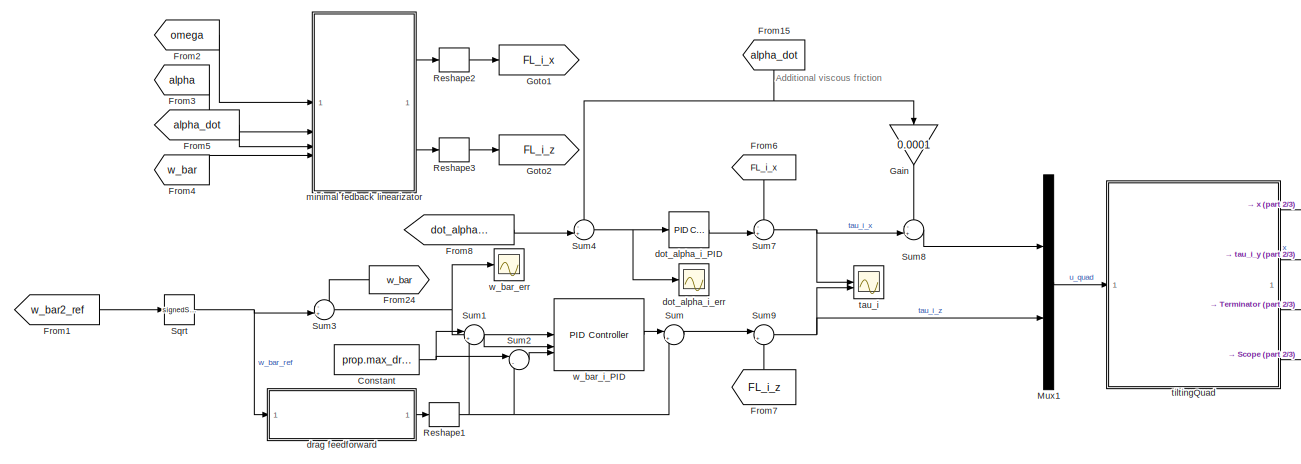
[diagram: root canvas - part 1/3, full width, top band]
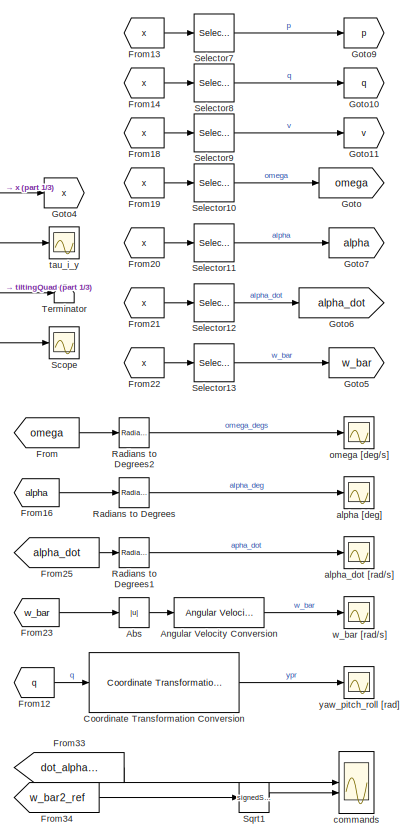
[diagram: root canvas - part 2/3, right side, full height]
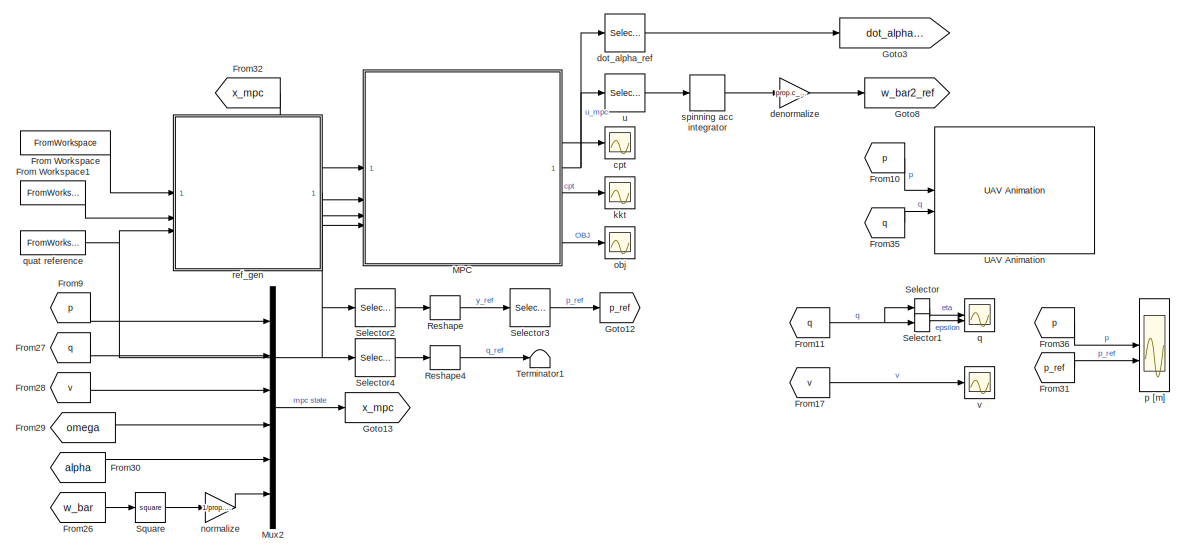
[diagram: root canvas - part 3/3, bottom center region]
MODEL slx_fb69500b9899
KIND model
CONFIG AbsTol = auto
CONFIG EnableMultiTasking = off
CONFIG FixedStep = Ts
CONFIG InitFcn = run initNMPChighFidelityTiltingQuadrotor.m
CONFIG MaxStep = auto
CONFIG MinStep = auto
CONFIG RelTol = 1e-3
CONFIG SampleTimeConstraint = Unconstrained
CONFIG SolverName = ode4
CONFIG StartTime = 0.0
CONFIG StopTime = 15
BLOCK [Abs] Abs
  SaturateOnIntegerOverflow = off
BLOCK [Reference] Angular Velocity Conversion  REF=aerolibconvert2/Angular Velocity
Conversion
  Commented = through
  SourceBlock = aerolibconvert2/Angular Velocity\nConversion
  SourceType = Angular Velocity Conversion
BLOCK [Constant] Constant
  Value = prop.max_drag
BLOCK [Reference] Coordinate Transformation Conversion  REF=robotcorelib/Coordinate Transformation Conversion
  LibrarySourceBlock = robotutilslib/Coordinate Transformation Conversion
  SourceBlock = robotcorelib/Coordinate Transformation Conversion
  SourceType = robotics.slcore.internal.block.CoordinateTransformationConversion
BLOCK [From] From
  GotoTag = omega
BLOCK [FromWorkspace] From Workspace
  Interpolate = off
  OutputAfterFinalValue = Holding final value
  SampleTime = Ts_st
  VariableName = ref
BLOCK [FromWorkspace] From Workspace1
  Interpolate = off
  OutputAfterFinalValue = Holding final value
  SampleTime = Ts_st
  VariableName = refN
BLOCK [From] From1
  GotoTag = w_bar2_ref
BLOCK [From] From10
  GotoTag = p
BLOCK [From] From11
  GotoTag = q
BLOCK [From] From12
  GotoTag = q
BLOCK [From] From13
  GotoTag = x
BLOCK [From] From14
  GotoTag = x
BLOCK [From] From15
  GotoTag = alpha_dot
  NameLocation = left
BLOCK [From] From16
  GotoTag = alpha
BLOCK [From] From17
  GotoTag = v
BLOCK [From] From18
  GotoTag = x
BLOCK [From] From19
  GotoTag = x
BLOCK [From] From2
  GotoTag = omega
BLOCK [From] From20
  GotoTag = x
BLOCK [From] From21
  GotoTag = x
BLOCK [From] From22
  GotoTag = x
BLOCK [From] From23
  GotoTag = w_bar
BLOCK [From] From24
  GotoTag = w_bar
BLOCK [From] From25
  GotoTag = alpha_dot
BLOCK [From] From26
  GotoTag = w_bar
BLOCK [From] From27
  GotoTag = q
BLOCK [From] From28
  GotoTag = v
BLOCK [From] From29
  GotoTag = omega
BLOCK [From] From3
  GotoTag = alpha
BLOCK [From] From30
  GotoTag = alpha
BLOCK [From] From31
  GotoTag = p_ref
BLOCK [From] From32
  GotoTag = x_mpc
BLOCK [From] From33
  GotoTag = dot_alpha_ref
BLOCK [From] From34
  GotoTag = w_bar2_ref
BLOCK [From] From35
  GotoTag = q
BLOCK [From] From36
  GotoTag = p
BLOCK [From] From4
  GotoTag = w_bar
BLOCK [From] From5
  GotoTag = alpha_dot
BLOCK [From] From6
  GotoTag = FL_i_x
  NameLocation = right
BLOCK [From] From7
  GotoTag = FL_i_z
  NameLocation = left
BLOCK [From] From8
  GotoTag = dot_alpha_ref
BLOCK [From] From9
  GotoTag = p
BLOCK [Gain] Gain
  Gain = 0.0001
  NameLocation = left
BLOCK [Goto] Goto
  GotoTag = omega
BLOCK [Goto] Goto1
  GotoTag = FL_i_x
BLOCK [Goto] Goto10
  GotoTag = q
BLOCK [Goto] Goto11
  GotoTag = v
BLOCK [Goto] Goto12
  GotoTag = p_ref
BLOCK [Goto] Goto13
  GotoTag = x_mpc
BLOCK [Goto] Goto2
  GotoTag = FL_i_z
BLOCK [Goto] Goto3
  GotoTag = dot_alpha_ref
BLOCK [Goto] Goto4
  GotoTag = x
BLOCK [Goto] Goto5
  GotoTag = w_bar
BLOCK [Goto] Goto6
  GotoTag = alpha_dot
BLOCK [Goto] Goto7
  GotoTag = alpha
BLOCK [Goto] Goto8
  GotoTag = w_bar2_ref
BLOCK [Goto] Goto9
  GotoTag = p
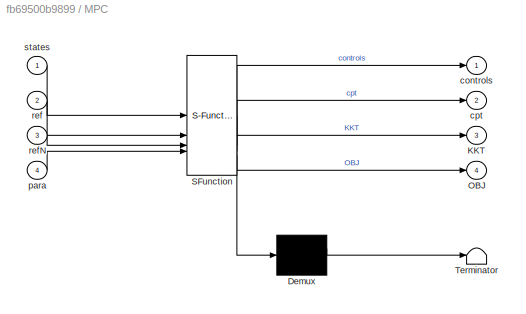
BLOCK [SubSystem] MPC
  ErrorFcn = Stateflow.Translate.translate
  PermitHierarchicalResolution = ExplicitOnly
  SFBlockType = MATLAB Function
  TreatAsAtomicUnit = on
BLOCK [Demux] MPC/ Demux 
  Outputs = 1
BLOCK [S-Function] MPC/ SFunction 
  EnableBusSupport = on
  FunctionName = sf_sfun
  Parameters = W,WN,lb,lbu,lbx,opt,settings,ub,ubu,ubx,z0
  PortCounts = [4 5]
  SFcnIsStateOwnerBlock = off
  SFunctionDeploymentMode = off
  Tag = Stateflow S-Function 2
BLOCK [Terminator] MPC/ Terminator 
BLOCK [Outport] MPC/KKT
  Port = 3
  VectorParamsAs1DForOutWhenUnconnected = off
BLOCK [Outport] MPC/OBJ
  Port = 4
  VectorParamsAs1DForOutWhenUnconnected = off
BLOCK [Outport] MPC/controls
  VectorParamsAs1DForOutWhenUnconnected = off
BLOCK [Outport] MPC/cpt
  Port = 2
  VectorParamsAs1DForOutWhenUnconnected = off
BLOCK [Inport] MPC/para
  Port = 4
BLOCK [Inport] MPC/ref
  Port = 2
BLOCK [Inport] MPC/refN
  Port = 3
BLOCK [Inport] MPC/states
BLOCK [Mux] Mux1
  DisplayOption = bar
  Inputs = 2
BLOCK [Mux] Mux2
  DisplayOption = bar
  Inputs = 6
BLOCK [Reference] Radians to Degrees  REF=simulink_extras/Transformations/Radians
to Degrees
  SourceBlock = simulink_extras/Transformations/Radians\nto Degrees
  SourceType = RadiansToDegrees
BLOCK [Reference] Radians to Degrees1  REF=simulink_extras/Transformations/Radians
to Degrees
  Commented = through
  SourceBlock = simulink_extras/Transformations/Radians\nto Degrees
  SourceType = RadiansToDegrees
BLOCK [Reference] Radians to Degrees2  REF=simulink_extras/Transformations/Radians
to Degrees
  SourceBlock = simulink_extras/Transformations/Radians\nto Degrees
  SourceType = RadiansToDegrees
BLOCK [Reshape] Reshape
BLOCK [Reshape] Reshape1
BLOCK [Reshape] Reshape2
BLOCK [Reshape] Reshape3
BLOCK [Reshape] Reshape4
BLOCK [Scope] Scope
  Floating = off
  NumInputPorts = 1
  ScopeSpecificationString = Simulink.scopes.TimeScopeBlockCfg('CurrentConfiguration', extmgr.ConfigurationSet(extmgr.Configuration('Core','General UI',true),extmgr.Configuration('Core','Source UI',true),extmgr.Configuration('Sources','WiredSimulink',true,'DataLoggingVariableName','ScopeData1'),extmgr.Configuration('Visuals','Time Domain',true,'SerializedDisplays',{struct('MinYLimReal','-0.000000000005','MaxYLimReal','0.00000...<+1549ch>
BLOCK [Selector] Selector
  IndexOptions = Index vector (dialog)
  Indices = 1
  InputPortWidth = 4
  OutputSizes = 1
BLOCK [Selector] Selector1
  IndexOptions = Index vector (dialog)
  Indices = 2:4
  InputPortWidth = 4
  OutputSizes = 1
BLOCK [Selector] Selector10
  IndexOptions = Index vector (dialog)
  Indices = 11:13
  InputPortWidth = 25
  OutputSizes = 1
BLOCK [Selector] Selector11
  IndexOptions = Index vector (dialog)
  Indices = 14:17
  InputPortWidth = 25
  OutputSizes = 1
BLOCK [Selector] Selector12
  IndexOptions = Index vector (dialog)
  Indices = 18:21
  InputPortWidth = 25
  OutputSizes = 1
BLOCK [Selector] Selector13
  IndexOptions = Index vector (dialog)
  Indices = 22:25
  InputPortWidth = 25
  OutputSizes = 1
BLOCK [Selector] Selector2
  IndexOptions = Select all,Index vector (dialog)
  Indices = 1:3,1
  InputPortWidth = [27 N]
  NumberOfDimensions = 2
  OutputSizes = 1,1
BLOCK [Selector] Selector3
  IndexOptions = Index vector (dialog)
  Indices = 1:3
  InputPortWidth = 28
  OutputSizes = 1
BLOCK [Selector] Selector4
  IndexOptions = Select all,Index vector (dialog)
  Indices = 1:3,1
  InputPortWidth = [27 N]
  NumberOfDimensions = 2
  OutputSizes = 1,1
BLOCK [Selector] Selector7
  IndexOptions = Index vector (dialog)
  Indices = 1:3
  InputPortWidth = 25
  OutputSizes = 1
BLOCK [Selector] Selector8
  IndexOptions = Index vector (dialog)
  Indices = 4:7
  InputPortWidth = 25
  OutputSizes = 1
BLOCK [Selector] Selector9
  IndexOptions = Index vector (dialog)
  Indices = 8:10
  InputPortWidth = 25
  OutputSizes = 1
BLOCK [Sqrt] Sqrt
  Operator = signedSqrt
BLOCK [Sqrt] Sqrt1
  Operator = signedSqrt
BLOCK [Math] Square
  Operator = square
BLOCK [Sum] Sum
  Inputs = |++
BLOCK [Sum] Sum1
  Inputs = |+-
BLOCK [Sum] Sum2
  Inputs = |--
BLOCK [Sum] Sum3
  Inputs = -+|
BLOCK [Sum] Sum4
  Inputs = -+|
BLOCK [Sum] Sum7
  Inputs = -+|
BLOCK [Sum] Sum8
  Inputs = -+|
BLOCK [Sum] Sum9
  Inputs = |+-
BLOCK [Terminator] Terminator
BLOCK [Terminator] Terminator1
BLOCK [Reference] UAV Animation  REF=uavutilslib/UAV Animation
  SourceBlock = uavutilslib/UAV Animation
  SourceType = uav.sluav.internal.system.UAVAnimation
BLOCK [Scope] alpha [deg]
  Floating = off
  NumInputPorts = 1
  ScopeSpecificationString = Simulink.scopes.TimeScopeBlockCfg('CurrentConfiguration', extmgr.ConfigurationSet(extmgr.Configuration('Core','General UI',true),extmgr.Configuration('Core','Source UI',true),extmgr.Configuration('Sources','WiredSimulink',true,'DataLoggingVariableName','ScopeData6','SampleTime','0.001'),extmgr.Configuration('Visuals','Time Domain',true,'SerializedDisplays',{struct('MinYLimReal','-75.00000','MaxYLi...<+1601ch>
BLOCK [Scope] alpha_dot [rad//s]
  Floating = off
  NumInputPorts = 1
  ScopeSpecificationString = Simulink.scopes.TimeScopeBlockCfg('CurrentConfiguration', extmgr.ConfigurationSet(extmgr.Configuration('Core','General UI',true),extmgr.Configuration('Core','Source UI',true),extmgr.Configuration('Sources','WiredSimulink',true,'DataLoggingVariableName','ScopeData7','SampleTime','0.001'),extmgr.Configuration('Visuals','Time Domain',true,'SerializedDisplays',{struct('MinYLimReal','-7.51954','MaxYLim...<+1502ch>
BLOCK [Scope] commands
  Floating = off
  NumInputPorts = 2
  ScopeSpecificationString = Simulink.scopes.TimeScopeBlockCfg('CurrentConfiguration', extmgr.ConfigurationSet(extmgr.Configuration('Core','General UI',true),extmgr.Configuration('Core','Source UI',true),extmgr.Configuration('Sources','WiredSimulink',true,'DataLoggingVariableName','ScopeData2'),extmgr.Configuration('Visuals','Time Domain',true,'SerializedDisplays',{struct('MinYLimReal','-7.5','MaxYLimReal','7.5','YLabelReal',...<+2245ch>
BLOCK [Scope] cpt
  Floating = off
  NumInputPorts = 1
  ScopeSpecificationString = Simulink.scopes.TimeScopeBlockCfg('CurrentConfiguration', extmgr.ConfigurationSet(extmgr.Configuration('Core','General UI',true),extmgr.Configuration('Core','Source UI',true),extmgr.Configuration('Sources','WiredSimulink',true,'DataLoggingVariableName','ScopeData1'),extmgr.Configuration('Visuals','Time Domain',true,'SerializedDisplays',{struct('MinYLimReal','1.665','MaxYLimReal','14.705','YLabelRe...<+1418ch>
BLOCK [Gain] denormalize
  Gain = prop.c_direction*prop.w_max.^2
BLOCK [Reference] dot_alpha_i_PID  REF=slpidlib/PID Controller
  LibrarySourceBlock = simulink/Continuous/PID Controller
  SourceBlock = slpidlib/PID Controller
  SourceType = PID 1dof
BLOCK [Scope] dot_alpha_i_err
  Floating = off
  NumInputPorts = 1
  ScopeSpecificationString = Simulink.scopes.TimeScopeBlockCfg('CurrentConfiguration', extmgr.ConfigurationSet(extmgr.Configuration('Core','General UI',true),extmgr.Configuration('Core','Source UI',true),extmgr.Configuration('Sources','WiredSimulink',true,'DataLoggingVariableName','ScopeData3'),extmgr.Configuration('Visuals','Time Domain',true,'SerializedDisplays',{struct('MinYLimReal','-7.49997','MaxYLimReal','7.49996','YLab...<+1444ch>
BLOCK [Selector] dot_alpha_ref
  IndexOptions = Index vector (dialog)
  Indices = 5:8
  InputPortWidth = 8
  OutputSizes = 1
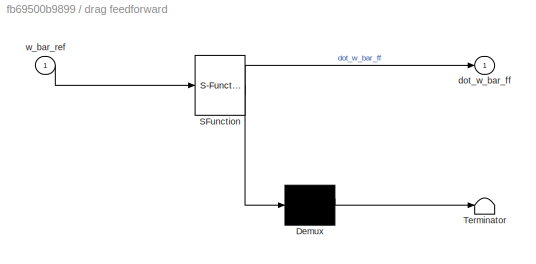
BLOCK [SubSystem] drag feedforward
  Commented = on
  ErrorFcn = Stateflow.Translate.translate
  LibrarySourceBlock = simulink/User-Defined\nFunctions/MATLAB Function
  PermitHierarchicalResolution = ExplicitOnly
  SFBlockType = MATLAB Function
  TreatAsAtomicUnit = on
BLOCK [Demux] drag feedforward/ Demux 
  Outputs = 1
BLOCK [S-Function] drag feedforward/ SFunction 
  EnableBusSupport = on
  FunctionName = sf_sfun
  Parameters = k_m
  PortCounts = [1 2]
  SFcnIsStateOwnerBlock = off
  SFunctionDeploymentMode = off
  Tag = Stateflow S-Function 1
BLOCK [Terminator] drag feedforward/ Terminator 
BLOCK [Outport] drag feedforward/dot_w_bar_ff
BLOCK [Inport] drag feedforward/w_bar_ref
BLOCK [Scope] kkt
  Floating = off
  NumInputPorts = 1
  ScopeSpecificationString = Simulink.scopes.TimeScopeBlockCfg('CurrentConfiguration', extmgr.ConfigurationSet(extmgr.Configuration('Core','General UI',true),extmgr.Configuration('Core','Source UI',true),extmgr.Configuration('Sources','WiredSimulink',true,'DataLoggingVariableName','ScopeData1'),extmgr.Configuration('Visuals','Time Domain',true,'SerializedDisplays',{struct('MinYLimReal','-0.43323','MaxYLimReal','5.34842','YLab...<+1410ch>
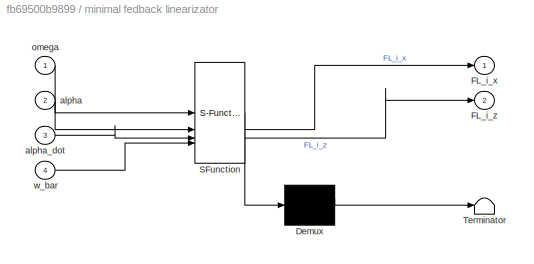
BLOCK [SubSystem] minimal fedback linearizator
  Commented = on
  ErrorFcn = Stateflow.Translate.translate
  LibrarySourceBlock = simulink/User-Defined\nFunctions/MATLAB Function
  PermitHierarchicalResolution = ExplicitOnly
  SFBlockType = MATLAB Function
  TreatAsAtomicUnit = on
BLOCK [Demux] minimal fedback linearizator/ Demux 
  Outputs = 1
BLOCK [S-Function] minimal fedback linearizator/ SFunction 
  EnableBusSupport = on
  FunctionName = sf_sfun
  Parameters = I_i,N,beta
  PortCounts = [4 3]
  SFcnIsStateOwnerBlock = off
  SFunctionDeploymentMode = off
  Tag = Stateflow S-Function 4
BLOCK [Terminator] minimal fedback linearizator/ Terminator 
BLOCK [Outport] minimal fedback linearizator/FL_i_x
BLOCK [Outport] minimal fedback linearizator/FL_i_z
  Port = 2
BLOCK [Inport] minimal fedback linearizator/alpha
  Port = 2
BLOCK [Inport] minimal fedback linearizator/alpha_dot
  Port = 3
BLOCK [Inport] minimal fedback linearizator/omega
BLOCK [Inport] minimal fedback linearizator/w_bar
  Port = 4
BLOCK [Gain] normalize
  Gain = 1/prop.w_max.^2
BLOCK [Scope] obj
  Floating = off
  NumInputPorts = 1
  ScopeSpecificationString = Simulink.scopes.TimeScopeBlockCfg('CurrentConfiguration', extmgr.ConfigurationSet(extmgr.Configuration('Core','General UI',true),extmgr.Configuration('Core','Source UI',true),extmgr.Configuration('Sources','WiredSimulink',true,'DataLoggingVariableName','ScopeData2'),extmgr.Configuration('Visuals','Time Domain',true,'SerializedDisplays',{struct('MinYLimReal','-8.08757','MaxYLimReal','72.84143','YLa...<+1465ch>
BLOCK [Scope] omega [deg//s]
  Floating = off
  NumInputPorts = 1
  ScopeSpecificationString = Simulink.scopes.TimeScopeBlockCfg('CurrentConfiguration', extmgr.ConfigurationSet(extmgr.Configuration('Core','General UI',true),extmgr.Configuration('Core','Source UI',true),extmgr.Configuration('Sources','WiredSimulink',true,'DataLoggingVariableName','ScopeData8','SampleTime','0.001'),extmgr.Configuration('Visuals','Time Domain',true,'SerializedDisplays',{struct('MinYLimReal','-51.3293','MaxYLim...<+1590ch>
BLOCK [Scope] p [m]
  Floating = off
  NumInputPorts = 2
  ScopeSpecificationString = Simulink.scopes.TimeScopeBlockCfg('CurrentConfiguration', extmgr.ConfigurationSet(extmgr.Configuration('Core','General UI',true),extmgr.Configuration('Core','Source UI',true),extmgr.Configuration('Sources','WiredSimulink',true,'DataLoggingVariableName','ScopeData9','SampleTime','0.001'),extmgr.Configuration('Visuals','Time Domain',true,'SerializedDisplays',{struct('MinYLimReal','-6.377','MaxYLimRe...<+2298ch>
BLOCK [Scope] q
  Floating = off
  NumInputPorts = 2
  ScopeSpecificationString = Simulink.scopes.TimeScopeBlockCfg('CurrentConfiguration', extmgr.ConfigurationSet(extmgr.Configuration('Core','General UI',true),extmgr.Configuration('Core','Source UI',true),extmgr.Configuration('Sources','WiredSimulink',true,'DataLoggingVariableName','ScopeData10','SampleTime','0.001'),extmgr.Configuration('Visuals','Time Domain',true,'SerializedDisplays',{struct('MinYLimReal','0.99986','MaxYLim...<+2162ch>
BLOCK [FromWorkspace] quat reference
  Interpolate = off
  OutputAfterFinalValue = Holding final value
  SampleTime = Ts_st
  VariableName = q_des
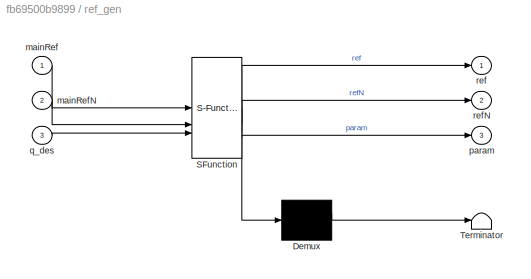
BLOCK [SubSystem] ref_gen
  ErrorFcn = Stateflow.Translate.translate
  PermitHierarchicalResolution = ExplicitOnly
  SFBlockType = MATLAB Function
  TreatAsAtomicUnit = on
BLOCK [Demux] ref_gen/ Demux 
  Outputs = 1
BLOCK [S-Function] ref_gen/ SFunction 
  EnableBusSupport = on
  FunctionName = sf_sfun
  Parameters = opt,para,settings
  PortCounts = [3 4]
  SFcnIsStateOwnerBlock = off
  SFunctionDeploymentMode = off
  Tag = Stateflow S-Function 3
BLOCK [Terminator] ref_gen/ Terminator 
BLOCK [Inport] ref_gen/mainRef
BLOCK [Inport] ref_gen/mainRefN
  Port = 2
BLOCK [Outport] ref_gen/param
  Port = 3
BLOCK [Inport] ref_gen/q_des
  Port = 3
BLOCK [Outport] ref_gen/ref
  VectorParamsAs1DForOutWhenUnconnected = off
BLOCK [Outport] ref_gen/refN
  Port = 2
  VectorParamsAs1DForOutWhenUnconnected = off
BLOCK [DiscreteIntegrator] spinning acc integrator
  ICPrevOutput = DiscIntNeverNeededParam
  ICPrevScaledInput = DiscIntNeverNeededParam
  InitialCondition = 0.33*ones(4,1)
  InitialConditionSetting = Auto
  SampleTime = -1
BLOCK [Scope] tau_i
  Floating = off
  NumInputPorts = 2
  ScopeSpecificationString = Simulink.scopes.TimeScopeBlockCfg('CurrentConfiguration', extmgr.ConfigurationSet(extmgr.Configuration('Core','General UI',true),extmgr.Configuration('Core','Source UI',true),extmgr.Configuration('Sources','WiredSimulink',true,'DataLoggingVariableName','ScopeData4','SampleTime','Ts_st'),extmgr.Configuration('Visuals','Time Domain',true,'SerializedDisplays',{struct('MinYLimReal','-0.16418','MaxYLim...<+2564ch>
BLOCK [Scope] tau_i_y
  Floating = off
  NumInputPorts = 1
  ScopeSpecificationString = Simulink.scopes.TimeScopeBlockCfg('CurrentConfiguration', extmgr.ConfigurationSet(extmgr.Configuration('Core','General UI',true),extmgr.Configuration('Core','Source UI',true),extmgr.Configuration('Sources','WiredSimulink',true,'DataLoggingVariableName','ScopeData5','SampleTime','0.001'),extmgr.Configuration('Visuals','Time Domain',true,'SerializedDisplays',{struct('MinYLimReal','-0.05993','MaxYLim...<+1614ch>
BLOCK [SubSystem] tiltingQuad
  I_b = body.I
  I_i = tiltq.I_i
  ReferencedSubsystem = high_fidelity_tilting_quadrotor
  alpha0 = alpha_0
  bar_w0 = w_bar_0
  beta = tiltq.beta
  c_direction = prop.c_direction
  d_alpha_0 = alpha_dot_0
  k_m = prop.k_m
  k_t = prop.k_t
  m_b = tiltq.m_b
  max_alpha = tiltq.max_alpha
  max_bar_w = [prop.w_max prop.w_max -prop.w_min -prop.w_min]
  max_d_alpha = tiltq.max_alpha_dot
  min_alpha = tiltq.min_alpha
  min_bar_w = [prop.w_min prop.w_min -prop.w_max -prop.w_max]
  min_d_alpha = tiltq.min_alpha_dot
  omega0 = omega_0
  p0 = p_0
  p_mot = tiltq.p_mot
  q0 = q_0
  v0 = v_0
BLOCK [Selector] u
  IndexOptions = Index vector (dialog)
  Indices = 1:4
  InputPortWidth = 8
  OutputSizes = 1
BLOCK [Scope] v
  Floating = off
  NumInputPorts = 1
  ScopeSpecificationString = Simulink.scopes.TimeScopeBlockCfg('CurrentConfiguration', extmgr.ConfigurationSet(extmgr.Configuration('Core','General UI',true),extmgr.Configuration('Core','Source UI',true),extmgr.Configuration('Sources','WiredSimulink',true,'DataLoggingVariableName','ScopeData11'),extmgr.Configuration('Visuals','Time Domain',true,'SerializedDisplays',{struct('MinYLimReal','-2.5242','MaxYLimReal','2.71327','YLab...<+1493ch>
BLOCK [Scope] w_bar [rad//s]
  Floating = off
  NumInputPorts = 1
  ScopeSpecificationString = Simulink.scopes.TimeScopeBlockCfg('CurrentConfiguration', extmgr.ConfigurationSet(extmgr.Configuration('Core','General UI',true),extmgr.Configuration('Core','Source UI',true),extmgr.Configuration('Sources','WiredSimulink',true,'SampleTime','0.001','DataLoggingVariableName','ScopeData12'),extmgr.Configuration('Visuals','Time Domain',true,'SerializedDisplays',{struct('MinYLimReal','218.46357','MaxYL...<+1916ch>
BLOCK [Scope] w_bar_err
  Floating = off
  NumInputPorts = 1
  ScopeSpecificationString = Simulink.scopes.TimeScopeBlockCfg('CurrentConfiguration', extmgr.ConfigurationSet(extmgr.Configuration('Core','General UI',true),extmgr.Configuration('Core','Source UI',true),extmgr.Configuration('Sources','WiredSimulink',true,'DataLoggingVariableName','ScopeData2','SampleTime','Ts_st'),extmgr.Configuration('Visuals','Time Domain',true,'SerializedDisplays',{struct('MinYLimReal','-36.21368','MaxYLi...<+1563ch>
BLOCK [Reference] w_bar_i_PID  REF=slpidlib/PID Controller
  LibrarySourceBlock = simulink/Continuous/PID Controller
  SourceBlock = slpidlib/PID Controller
  SourceType = PID 1dof
BLOCK [Scope] yaw_pitch_roll [rad]
  Floating = off
  NumInputPorts = 1
  ScopeSpecificationString = Simulink.scopes.TimeScopeBlockCfg('CurrentConfiguration', extmgr.ConfigurationSet(extmgr.Configuration('Core','General UI',true),extmgr.Configuration('Core','Source UI',true),extmgr.Configuration('Sources','WiredSimulink',true,'DataLoggingVariableName','ScopeData14'),extmgr.Configuration('Visuals','Time Domain',true,'SerializedDisplays',{struct('MinYLimReal','-0.13032','MaxYLimReal','0.03629','YLa...<+1501ch>
ANNOTATION (root): Additional viscous friction
LINE Abs:1 -> Angular Velocity Conversion:1
LINE Angular Velocity Conversion:1 -> w_bar [rad//s]:1
NET Constant:1 -> Sum1:1, Sum2:1
LINE Coordinate Transformation Conversion:1 -> yaw_pitch_roll [rad]:1
LINE From Workspace1:1 -> ref_gen:2
LINE From Workspace:1 -> ref_gen:1
LINE From10:1 -> UAV Animation:1
NET From11:1 -> Selector1:1, Selector:1
LINE From12:1 -> Coordinate Transformation Conversion:1
LINE From13:1 -> Selector7:1
LINE From14:1 -> Selector8:1
NET From15:1 -> Gain:1, Sum4:1
LINE From16:1 -> Radians to Degrees:1
LINE From17:1 -> v:1
LINE From18:1 -> Selector9:1
LINE From19:1 -> Selector10:1
LINE From1:1 -> Sqrt:1
LINE From20:1 -> Selector11:1
LINE From21:1 -> Selector12:1
LINE From22:1 -> Selector13:1
LINE From23:1 -> Abs:1
LINE From24:1 -> Sum3:1
LINE From25:1 -> Radians to Degrees1:1
LINE From26:1 -> Square:1
LINE From27:1 -> Mux2:2
LINE From28:1 -> Mux2:3
LINE From29:1 -> Mux2:4
LINE From2:1 -> minimal fedback linearizator:1
LINE From30:1 -> Mux2:5
LINE From31:1 -> p [m]:2
LINE From32:1 -> MPC:1
LINE From33:1 -> commands:1
LINE From34:1 -> Sqrt1:1
LINE From35:1 -> UAV Animation:2
LINE From36:1 -> p [m]:1
LINE From3:1 -> minimal fedback linearizator:2
LINE From4:1 -> minimal fedback linearizator:4
LINE From5:1 -> minimal fedback linearizator:3
LINE From6:1 -> Sum7:1
LINE From7:1 -> Sum9:2
LINE From8:1 -> Sum4:2
LINE From9:1 -> Mux2:1
LINE From:1 -> Radians to Degrees2:1
LINE Gain:1 -> Sum8:1
NET MPC:1 -> dot_alpha_ref:1, u:1
LINE MPC:2 -> cpt:1
LINE MPC:3 -> kkt:1
LINE MPC:4 -> obj:1
LINE Mux1:1 -> tiltingQuad:1
LINE Mux2:1 -> Goto13:1
LINE Radians to Degrees1:1 -> alpha_dot [rad//s]:1
LINE Radians to Degrees2:1 -> omega [deg//s]:1
LINE Radians to Degrees:1 -> alpha [deg]:1
NET Reshape1:1 -> Sum1:2, Sum2:2, Sum:2
LINE Reshape2:1 -> Goto1:1
LINE Reshape3:1 -> Goto2:1
LINE Reshape4:1 -> Terminator1:1
LINE Reshape:1 -> Selector3:1
LINE Selector10:1 -> Goto:1
LINE Selector11:1 -> Goto7:1
LINE Selector12:1 -> Goto6:1
LINE Selector13:1 -> Goto5:1
LINE Selector1:1 -> q:2
LINE Selector2:1 -> Reshape:1
LINE Selector3:1 -> Goto12:1
LINE Selector4:1 -> Reshape4:1
LINE Selector7:1 -> Goto9:1
LINE Selector8:1 -> Goto10:1
LINE Selector9:1 -> Goto11:1
LINE Selector:1 -> q:1
LINE Sqrt1:1 -> commands:2
NET Sqrt:1 -> Sum3:2, drag feedforward:1
LINE Square:1 -> normalize:1
LINE Sum1:1 -> w_bar_i_PID:2
LINE Sum2:1 -> w_bar_i_PID:3
NET Sum3:1 -> w_bar_err:1, w_bar_i_PID:1
NET Sum4:1 -> dot_alpha_i_PID:1, dot_alpha_i_err:1
NET Sum7:1 -> Sum8:2, tau_i:1
LINE Sum8:1 -> Mux1:1
NET Sum9:1 -> Mux1:2, tau_i:2
LINE Sum:1 -> Sum9:1
LINE denormalize:1 -> Goto8:1
LINE dot_alpha_i_PID:1 -> Sum7:2
LINE dot_alpha_ref:1 -> Goto3:1
LINE drag feedforward:1 -> Reshape1:1
LINE minimal fedback linearizator:1 -> Reshape2:1
LINE minimal fedback linearizator:2 -> Reshape3:1
LINE normalize:1 -> Mux2:6
NET quat reference:1 -> Selector4:1, ref_gen:3
NET ref_gen:1 -> MPC:2, Selector2:1
LINE ref_gen:2 -> MPC:3
LINE ref_gen:3 -> MPC:4
LINE spinning acc integrator:1 -> denormalize:1
LINE tiltingQuad:1 -> Goto4:1
LINE tiltingQuad:2 -> tau_i_y:1
LINE tiltingQuad:3 -> Terminator:1
LINE tiltingQuad:4 -> Scope:1
LINE u:1 -> spinning acc integrator:1
LINE w_bar_i_PID:1 -> Sum:1
note: NET lines group one-source signal fan-out (src -> all destinations, sorted); 1:1 wires keep LINE
CHART ref_gen states=1 transitions=1
  STATE_LABEL 'eML_blk_kernel()'
  STATE_LABEL 'SCRIPT:\nfunction [ref,refN, param] = Ref_Generator(settings, mainRef, opt, mainRefN, q_des, para)\n\nswitch opt.ref_type\n    case 0\n        p_ref = [1 1 1];\n        qe_ref = [0 0 0];\n        v_ref = [0 0 0];\n        omega_ref = [0 0 0];\n        alpha_ref = [0 0 0 0];\n        w_bar_ref = 0.33*ones(1,4);\n        u_ref = [0 0 0 0];\n        dot_alpha_ref = [0 0 0 0];\n        REF=[p_ref qe_ref v_ref omeg...<+734ch>'
CHART minimal fedback linearizator states=1 transitions=1
  STATE_LABEL 'eML_blk_kernel()'
  STATE_LABEL "SCRIPT:\nfunction [FL_i_x, FL_i_z]= fcn(omega, alpha, beta, N, alpha_dot, w_bar, I_i)\n\nFL_i_x = zeros(4,1);\nFL_i_z = zeros(4,1);\n\nfor i=1:N\n    B_R_i = axang2rotm([0 0 1 beta(i)])*axang2rotm([1 0 0 alpha(i)]);\n    omega_i = B_R_i.' * omega + [alpha_dot(i); 0; w_bar(i)];\n    coriol_i = cross(omega_i, I_i*omega_i);\n    FF_i = coriol_i;\n    FL_i_x(i) = -FF_i(1);\n    FL_i_z(i) = -FF_i(3);\nend"
CHART drag feedforward states=1 transitions=1
  STATE_LABEL 'eML_blk_kernel()'
  STATE_LABEL 'SCRIPT:\nfunction dot_w_bar_ff = fcn(w_bar_ref, k_m)\n\ndot_w_bar_ff = k_m .* w_bar_ref .* abs(w_bar_ref);\n'
CHART MPC states=1 transitions=1
  STATE_LABEL 'eML_blk_kernel()'
  STATE_LABEL "SCRIPT:\nfunction [controls, cpt, KKT, OBJ] = NMPC_BLOCK(states, settings, opt, lb, ub, lbx, ubx, lbu, ubu, W, WN, ref, refN, z0, para)\n\n%% everything should has a fixed size\ncoder.extrinsic('mpc_nmpcsolver_simulink');  \ncoder.extrinsic('InitData');  \ncoder.extrinsic('InitMemory');  \ncoder.extrinsic('evalin');\ncoder.extrinsic('assignin');\n\n%%\n\npersistent x u z lambda mu mu_x mu_u;\npersistent input ...<+2779ch>"
CHART  states=0 transitions=0
CHART  states=0 transitions=0
CHART  states=0 transitions=0
CHART  states=0 transitions=0
